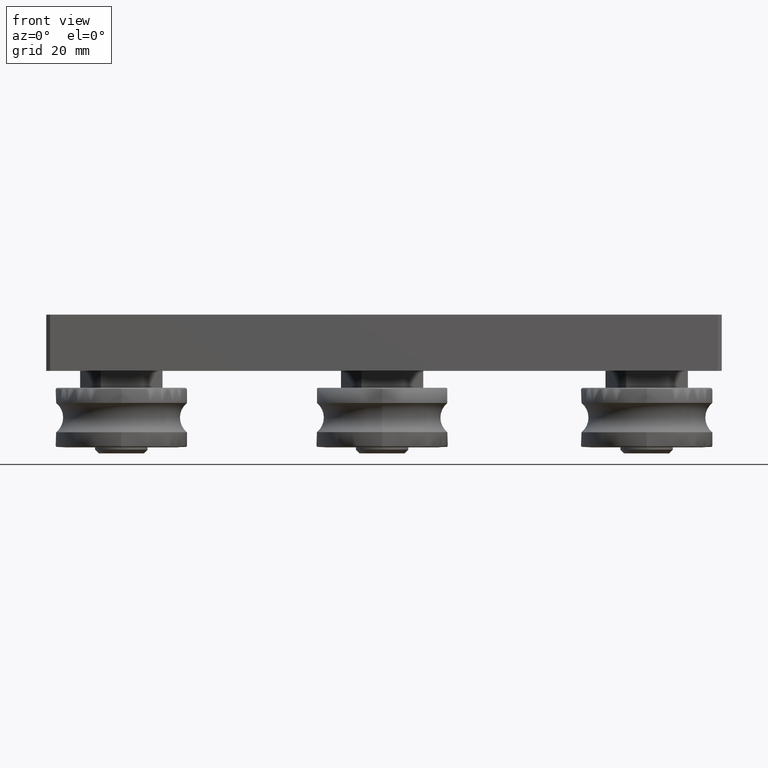
[diagram: clean part render]
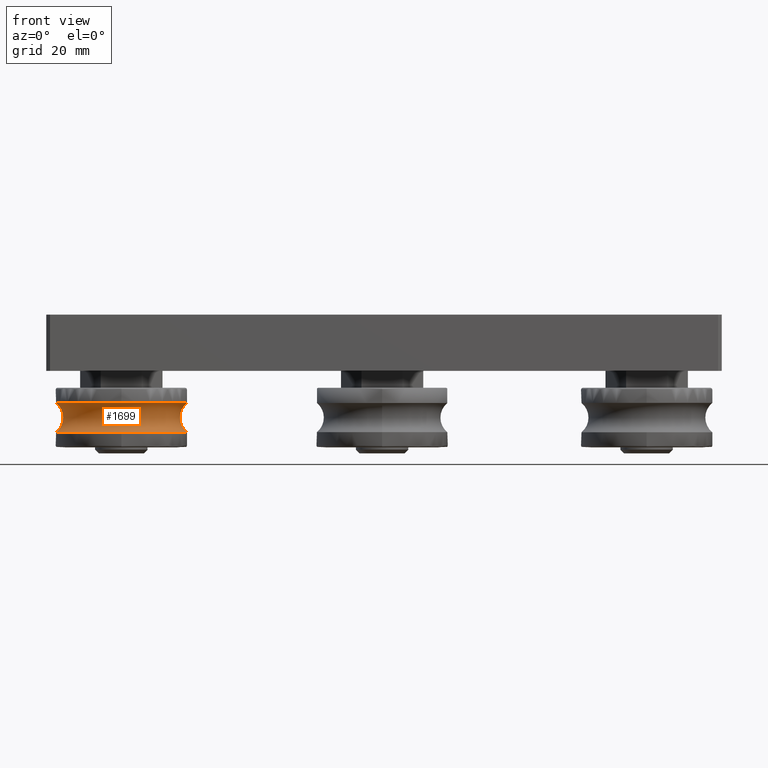
[diagram: same view with one face highlighted and labeled with its STEP entity id]
A machine part, front view. The second image highlights one B-rep face of the part: STEP entity #1699.
In plain terms, the highlighted toroidal blend (fillet) surface has major radius 20.65 mm and minor (blend) radius 5.025 mm.
Its self-contained STEP definition (entity closure, byte-faithful):
#70=TOROIDAL_SURFACE('',#2035,20.6499999999868,5.025);
#276=CIRCLE('',#2036,17.4999999999996);
#277=CIRCLE('',#2037,17.5);
#278=CIRCLE('',#2038,5.025);
#279=CIRCLE('',#2039,17.5);
#280=CIRCLE('',#2040,17.5);
#281=CIRCLE('',#2041,17.5);
#282=CIRCLE('',#2042,17.5);
#380=FACE_OUTER_BOUND('',#511,.T.);
#511=EDGE_LOOP('',(#1467,#1468,#1469,#1470,#1471,#1472,#1473,#1474));
#869=VERTEX_POINT('',#3361);
#870=VERTEX_POINT('',#3362);
#871=VERTEX_POINT('',#3364);
#872=VERTEX_POINT('',#3366);
#873=VERTEX_POINT('',#3368);
#874=VERTEX_POINT('',#3370);
#1070=EDGE_CURVE('',#869,#870,#276,.F.);
#1071=EDGE_CURVE('',#870,#871,#277,.F.);
#1072=EDGE_CURVE('',#871,#872,#278,.T.);
#1073=EDGE_CURVE('',#872,#873,#279,.T.);
#1074=EDGE_CURVE('',#873,#874,#280,.T.);
#1075=EDGE_CURVE('',#874,#872,#281,.T.);
#1076=EDGE_CURVE('',#871,#869,#282,.F.);
#1467=ORIENTED_EDGE('',*,*,#1070,.T.);
#1468=ORIENTED_EDGE('',*,*,#1071,.T.);
#1469=ORIENTED_EDGE('',*,*,#1072,.T.);
#1470=ORIENTED_EDGE('',*,*,#1073,.T.);
#1471=ORIENTED_EDGE('',*,*,#1074,.T.);
#1472=ORIENTED_EDGE('',*,*,#1075,.T.);
#1473=ORIENTED_EDGE('',*,*,#1072,.F.);
#1474=ORIENTED_EDGE('',*,*,#1076,.T.);
#1699=ADVANCED_FACE('',(#380),#70,.F.);
#2035=AXIS2_PLACEMENT_3D('',#3360,#2493,#2494);
#2036=AXIS2_PLACEMENT_3D('',#3363,#2495,#2496);
#2037=AXIS2_PLACEMENT_3D('',#3365,#2497,#2498);
#2038=AXIS2_PLACEMENT_3D('',#3367,#2499,#2500);
#2039=AXIS2_PLACEMENT_3D('',#3369,#2501,#2502);
#2040=AXIS2_PLACEMENT_3D('',#3371,#2503,#2504);
#2041=AXIS2_PLACEMENT_3D('',#3372,#2505,#2506);
#2042=AXIS2_PLACEMENT_3D('',#3373,#2507,#2508);
#2493=DIRECTION('center_axis',(0.,0.,-1.));
#2494=DIRECTION('ref_axis',(-1.,0.,0.));
#2495=DIRECTION('center_axis',(1.98389456597708E-15,0.,-1.));
#2496=DIRECTION('ref_axis',(-1.,0.,-1.98389456597708E-15));
#2497=DIRECTION('center_axis',(-1.98389456597707E-15,0.,-1.));
#2498=DIRECTION('ref_axis',(-1.,0.,1.98389456597707E-15));
#2499=DIRECTION('center_axis',(1.22464679914735E-16,1.,0.));
#2500=DIRECTION('ref_axis',(1.,-1.22464679914735E-16,0.));
#2501=DIRECTION('center_axis',(8.70120689653672E-16,0.,-1.));
#2502=DIRECTION('ref_axis',(-1.,0.,-8.70120689653672E-16));
#2503=DIRECTION('center_axis',(0.,0.,-1.));
#2504=DIRECTION('ref_axis',(-1.,0.,0.));
#2505=DIRECTION('center_axis',(8.70120689653672E-16,0.,-1.));
#2506=DIRECTION('ref_axis',(-1.,0.,-8.70120689653672E-16));
#2507=DIRECTION('center_axis',(-1.98389456597707E-15,0.,-1.));
#2508=DIRECTION('ref_axis',(-1.,0.,1.98389456597707E-15));
#3360=CARTESIAN_POINT('Origin',(0.,0.,-22.3500000001203));
#3361=CARTESIAN_POINT('',(1.03181352351101E-11,17.500000000012,-26.2651149409818));
#3362=CARTESIAN_POINT('',(1.14352971536391E-11,-17.4999999999877,-26.2651149409818));
#3363=CARTESIAN_POINT('Origin',(1.10942254597084E-11,1.2115308756222E-11,
-26.2651149409632));
#3364=CARTESIAN_POINT('',(17.5000000000119,-2.14313189850989E-15,-26.2651149409818));
#3365=CARTESIAN_POINT('Origin',(1.18873911500323E-11,1.2115308756222E-11,
-26.2651149409818));
#3366=CARTESIAN_POINT('',(17.5000000000119,-2.14313189850787E-15,-18.4348850592588));
#3367=CARTESIAN_POINT('Origin',(20.6499999999868,-2.52889564023767E-15,
-22.3500000001203));
#3368=CARTESIAN_POINT('',(-1.07153055959535E-15,-17.4999999999997,-18.4348850592588));
#3369=CARTESIAN_POINT('Origin',(1.18828972004595E-11,1.21291865440298E-11,
-18.4348850592588));
#3370=CARTESIAN_POINT('',(1.14352971536391E-11,17.5000000000119,-18.4348850592588));
#3371=CARTESIAN_POINT('Origin',(1.14352971536391E-11,1.21291865440298E-11,
-18.4348850592774));
#3372=CARTESIAN_POINT('Origin',(1.18828972004595E-11,1.21291865440298E-11,
-18.4348850592588));
#3373=CARTESIAN_POINT('Origin',(1.18873911500323E-11,1.2115308756222E-11,
-26.2651149409818));